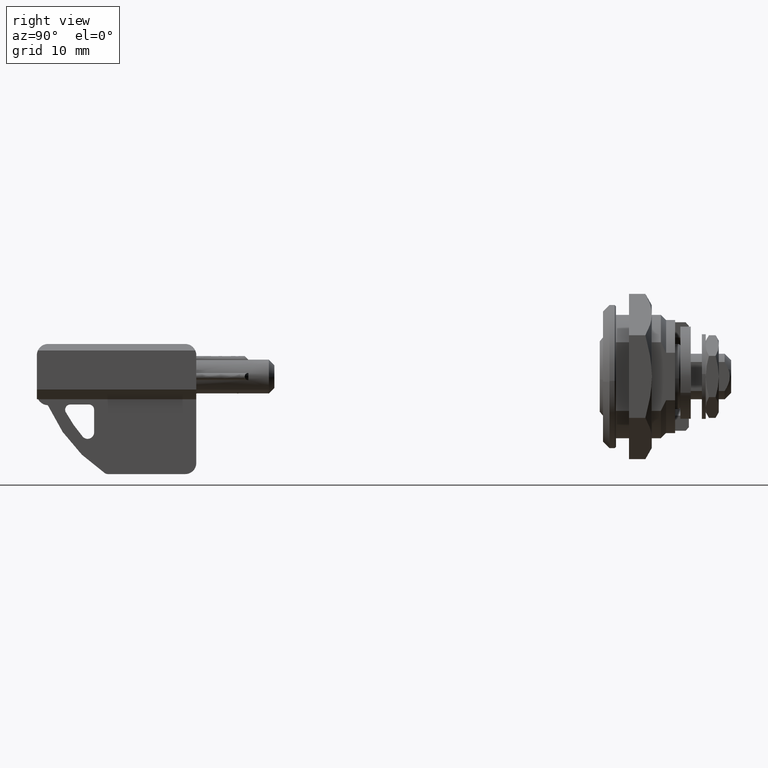
[diagram: clean part render]
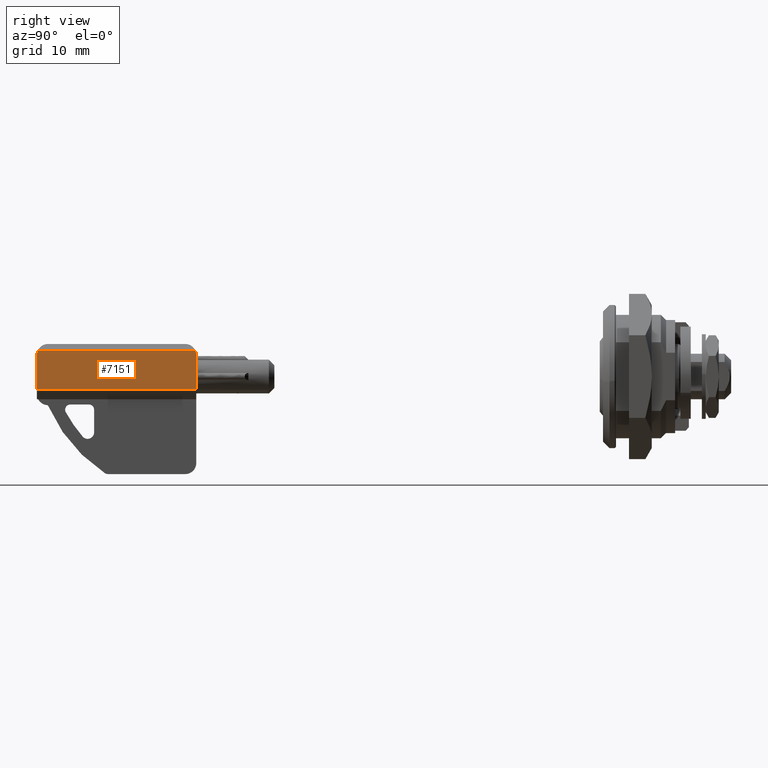
[diagram: same view with one face highlighted and labeled with its STEP entity id]
A machine part, right view. The second image highlights one B-rep face of the part: STEP entity #7151.
In plain terms, the highlighted face is a freeform B-spline surface patch.
Its self-contained STEP definition (entity closure, byte-faithful):
#6355=CARTESIAN_POINT('',(3.999999999999994,-89.0,-1.999999999999970));
#6356=VERTEX_POINT('',#6355);
#6357=CARTESIAN_POINT('',(3.999999999999994,-89.0,3.300000000000000));
#6358=VERTEX_POINT('',#6357);
#6359=CARTESIAN_POINT('',(3.999999999999994,-89.0,-1.999999999999970));
#6360=CARTESIAN_POINT('',(3.999999999999994,-89.0,3.300000000000000));
#6361=QUASI_UNIFORM_CURVE('',1,(#6359,#6360),.UNSPECIFIED.,.F.,.U.);
#6362=EDGE_CURVE('',#6356,#6358,#6361,.T.);
#6412=CARTESIAN_POINT('',(3.999999999999994,-88.849193338482991,4.0));
#6413=VERTEX_POINT('',#6412);
#6457=CARTESIAN_POINT('',(3.999999999999994,-88.849193338482962,3.999999999999989));
#6458=CARTESIAN_POINT('',(3.999999999999994,-89.0,3.666244749398503));
#6459=CARTESIAN_POINT('',(3.999999999999994,-89.0,3.300000000000000));
#6467=(BOUNDED_CURVE()B_SPLINE_CURVE(2,(#6457,#6458,#6459),.UNSPECIFIED.,.F.,.U.)CURVE()GEOMETRIC_REPRESENTATION_ITEM()QUASI_UNIFORM_CURVE()RATIONAL_B_SPLINE_CURVE((1.0,0.977571020209691,1.0))REPRESENTATION_ITEM(''));
#6468=EDGE_CURVE('',#6413,#6358,#6467,.T.);
#6487=CARTESIAN_POINT('',(3.999999999999996,-64.500000000000000,3.300000000000000));
#6488=VERTEX_POINT('',#6487);
#6489=CARTESIAN_POINT('',(3.999999999999996,-64.650806661516995,4.0));
#6490=VERTEX_POINT('',#6489);
#6491=CARTESIAN_POINT('',(3.999999999999996,-64.500000000000014,3.300000000000000));
#6492=CARTESIAN_POINT('',(3.999999999999996,-64.500000000000014,3.666244749398501));
#6493=CARTESIAN_POINT('',(3.999999999999996,-64.650806661517038,3.999999999999984));
#6501=(BOUNDED_CURVE()B_SPLINE_CURVE(2,(#6491,#6492,#6493),.UNSPECIFIED.,.F.,.U.)CURVE()GEOMETRIC_REPRESENTATION_ITEM()QUASI_UNIFORM_CURVE()RATIONAL_B_SPLINE_CURVE((1.0,0.977571020209691,1.0))REPRESENTATION_ITEM(''));
#6502=EDGE_CURVE('',#6488,#6490,#6501,.T.);
#6561=CARTESIAN_POINT('',(3.999999999999994,-88.849193338482991,4.0));
#6562=CARTESIAN_POINT('',(3.999999999999996,-64.650806661516995,4.0));
#6563=QUASI_UNIFORM_CURVE('',1,(#6561,#6562),.UNSPECIFIED.,.F.,.U.);
#6564=EDGE_CURVE('',#6413,#6490,#6563,.T.);
#6595=CARTESIAN_POINT('',(3.999999999999996,-64.500000000000000,-1.999999999999970));
#6596=VERTEX_POINT('',#6595);
#6602=CARTESIAN_POINT('',(3.999999999999994,-89.0,-1.999999999999970));
#6603=CARTESIAN_POINT('',(3.999999999999996,-64.500000000000000,-1.999999999999970));
#6604=QUASI_UNIFORM_CURVE('',1,(#6602,#6603),.UNSPECIFIED.,.F.,.U.);
#6605=EDGE_CURVE('',#6356,#6596,#6604,.T.);
#7134=CARTESIAN_POINT('',(3.999999999999994,-90.223774952514248,-2.299699988370804));
#7135=CARTESIAN_POINT('',(3.999999999999996,-63.276224390344538,-2.299699988370804));
#7136=CARTESIAN_POINT('',(3.999999999999994,-90.223774952514248,4.299700149303374));
#7137=CARTESIAN_POINT('',(3.999999999999996,-63.276224390344538,4.299700149303374));
#7138=B_SPLINE_SURFACE_WITH_KNOTS('',1,1,((#7134,#7136),(#7135,#7137)),.UNSPECIFIED.,.F.,.F.,.U.,(2,2),(2,2),(0.0,26.947550562169710),(0.0,6.599400137674178),.UNSPECIFIED.);
#7139=CARTESIAN_POINT('',(3.999999999999996,-64.500000000000000,3.300000000000000));
#7140=CARTESIAN_POINT('',(3.999999999999996,-64.500000000000000,-1.999999999999970));
#7141=QUASI_UNIFORM_CURVE('',1,(#7139,#7140),.UNSPECIFIED.,.F.,.U.);
#7142=EDGE_CURVE('',#6488,#6596,#7141,.T.);
#7143=ORIENTED_EDGE('',*,*,#7142,.F.);
#7144=ORIENTED_EDGE('',*,*,#6502,.T.);
#7145=ORIENTED_EDGE('',*,*,#6564,.F.);
#7146=ORIENTED_EDGE('',*,*,#6468,.T.);
#7147=ORIENTED_EDGE('',*,*,#6362,.F.);
#7148=ORIENTED_EDGE('',*,*,#6605,.T.);
#7149=EDGE_LOOP('',(#7143,#7144,#7145,#7146,#7147,#7148));
#7150=FACE_OUTER_BOUND('',#7149,.T.);
#7151=ADVANCED_FACE('',(#7150),#7138,.T.);